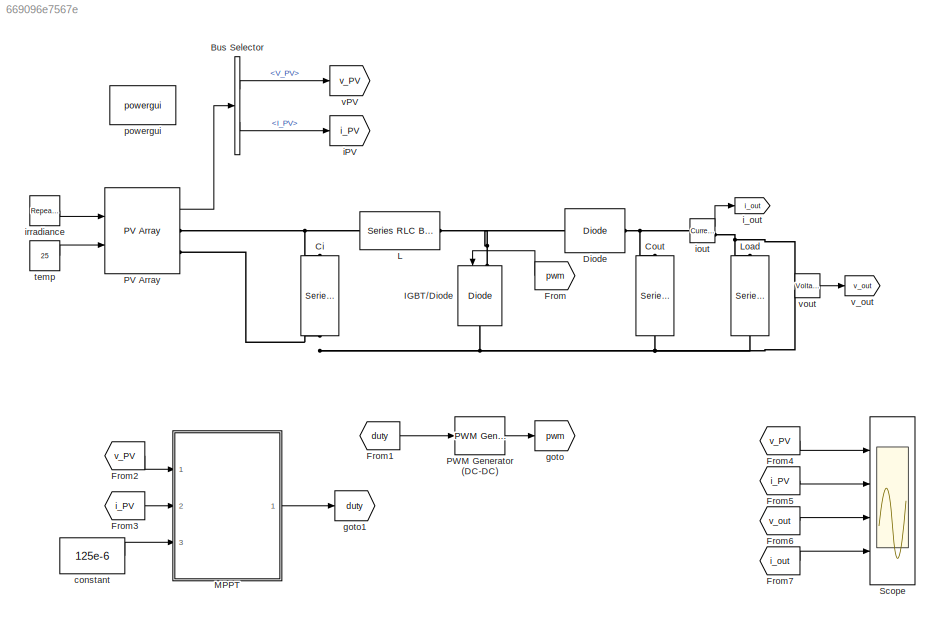
MODEL slx_669096e7567e
KIND model
CONFIG AbsTol = auto
CONFIG FixedStep = 5e-6
CONFIG MaxStep = auto
CONFIG MinStep = auto
CONFIG RelTol = 1e-3
CONFIG SampleTimeConstraint = Unconstrained
CONFIG Solver = ode3
CONFIG SolverMode = Auto
CONFIG SolverName = ode3
CONFIG StartTime = 0.0
CONFIG StopTime = 1.5
BLOCK [BusSelector] Bus Selector
  OutputSignals = V_PV,I_PV
  Ports = [1, 2]
BLOCK [Reference] Ci  REF=powerlib/Elements/Series RLC Branch
  Ports = [0, 0, 0, 0, 0, 1, 1]
  SourceBlock = powerlib/Elements/Series RLC Branch
  SourceType = Series RLC Branch
BLOCK [Reference] Cout  REF=powerlib/Elements/Series RLC Branch
  Ports = [0, 0, 0, 0, 0, 1, 1]
  SourceBlock = powerlib/Elements/Series RLC Branch
  SourceType = Series RLC Branch
BLOCK [Reference] Diode  REF=powerlib/Power
Electronics/Diode
  Ports = [0, 0, 0, 0, 0, 1, 1]
  SourceBlock = powerlib/Power\nElectronics/Diode
  SourceType = Diode
BLOCK [From] From
  GotoTag = pwm
BLOCK [From] From1
  GotoTag = duty
BLOCK [From] From2
  GotoTag = v_PV
BLOCK [From] From3
  GotoTag = i_PV
BLOCK [From] From4
  GotoTag = v_PV
BLOCK [From] From5
  GotoTag = i_PV
BLOCK [From] From6
  GotoTag = v_out
BLOCK [From] From7
  GotoTag = i_out
BLOCK [Reference] IGBT//Diode  REF=powerlib/Power
Electronics/IGBT//Diode
  Ports = [1, 0, 0, 0, 0, 1, 1]
  SourceBlock = powerlib/Power\nElectronics/IGBT//Diode
  SourceType = IGBT/Diode
BLOCK [Reference] L  REF=powerlib/Elements/Series RLC Branch
  Ports = [0, 0, 0, 0, 0, 1, 1]
  SourceBlock = powerlib/Elements/Series RLC Branch
  SourceType = Series RLC Branch
BLOCK [Reference] Load  REF=powerlib/Elements/Series RLC Branch
  Ports = [0, 0, 0, 0, 0, 1, 1]
  SourceBlock = powerlib/Elements/Series RLC Branch
  SourceType = Series RLC Branch
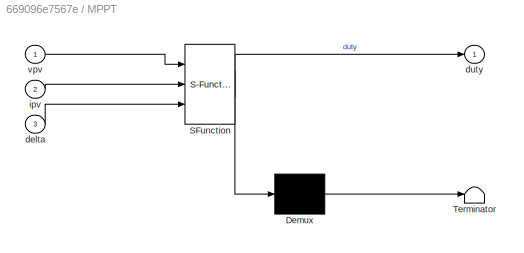
BLOCK [SubSystem] MPPT 
  ErrorFcn = Stateflow.Translate.translate
  PermitHierarchicalResolution = ExplicitOnly
  Ports = [3, 1]
  RequestExecContextInheritance = off
  SFBlockType = MATLAB Function
  TreatAsAtomicUnit = on
  Variant = off
BLOCK [Demux] MPPT / Demux 
  Outputs = 1
  Ports = [1, 1]
BLOCK [S-Function] MPPT / SFunction 
  EnableBusSupport = on
  FunctionName = sf_sfun
  PortCounts = [3 2]
  Ports = [3, 2]
  SFunctionDeploymentMode = off
  Tag = Stateflow S-Function MPPT 2
BLOCK [Terminator] MPPT / Terminator 
BLOCK [Inport] MPPT /delta
  IconDisplay = Port number
  Port = 3
BLOCK [Outport] MPPT /duty
  IconDisplay = Port number
BLOCK [Inport] MPPT /ipv
  IconDisplay = Port number
  Port = 2
BLOCK [Inport] MPPT /vpv
  IconDisplay = Port number
BLOCK [Reference] PV Array  REF=re_lib/Solar/PV Array
  Ports = [2, 1, 0, 0, 0, 0, 2]
  SourceBlock = re_lib/Solar/PV Array
  SourceType = PV array
BLOCK [Reference] PWM Generator (DC-DC)  REF=powerlib_meascontrol/Pulse & Signal
Generators/PWM Generator
(DC-DC)
  Ports = [1, 1]
  SourceBlock = powerlib_meascontrol/Pulse & Signal\nGenerators/PWM Generator\n(DC-DC)
  SourceType = PWM Generator (DC-DC)
BLOCK [Scope] Scope
  NumInputPorts = 4
  Ports = [4]
  ScopeSpecificationString = Simulink.scopes.TimeScopeBlockCfg('CurrentConfiguration', extmgr.ConfigurationSet(extmgr.Configuration('Core','General UI',true,'FigureColor',[1 1 1]),extmgr.Configuration('Core','Source UI',true),extmgr.Configuration('Sources','WiredSimulink',true),extmgr.Configuration('Visuals','Time Domain',true,'SerializedDisplays',{struct('MinYLimReal','-10','MaxYLimReal','10','YLabelReal','','MinYLimMag','0'...<+7148ch>
BLOCK [Constant] constant
  Value = 125e-6
BLOCK [Goto] goto
  GotoTag = pwm
BLOCK [Goto] goto1
  GotoTag = duty
BLOCK [Goto] iPV
  GotoTag = i_PV
BLOCK [Goto] i_out 
  GotoTag = i_out
BLOCK [Reference] iout  REF=powerlib/Measurements/Current Measurement
  Ports = [0, 1, 0, 0, 0, 1, 1]
  SourceBlock = powerlib/Measurements/Current Measurement
  SourceType = Current Measurement
  UserDataPersistent = on
BLOCK [Reference] irradiance  REF=simulink/Sources/Repeating
Sequence
Interpolated
  Ports = [0, 1]
  SourceBlock = simulink/Sources/Repeating\nSequence\nInterpolated
  SourceType = Repeating Sequence Interpolated
BLOCK [Reference] powergui  REF=powerlib/powergui
  Ports = []
  Priority = 1
  SourceBlock = powerlib/powergui
  SourceType = PSB option menu block
  UserDataPersistent = on
BLOCK [Constant] temp
  Value = 25
BLOCK [Goto] vPV
  GotoTag = v_PV
BLOCK [Goto] v_out 
  GotoTag = v_out
BLOCK [Reference] vout   REF=powerlib/Measurements/Voltage Measurement
  Ports = [0, 1, 0, 0, 0, 2]
  SourceBlock = powerlib/Measurements/Voltage Measurement
  SourceType = Voltage Measurement
  UserDataPersistent = on
LINE Bus Selector:1 -> vPV:1
LINE Bus Selector:2 -> iPV:1
LINE From1:1 -> PWM Generator (DC-DC):1
LINE From2:1 -> MPPT :1
LINE From3:1 -> MPPT :2
LINE From4:1 -> Scope:1
LINE From5:1 -> Scope:2
LINE From6:1 -> Scope:3
LINE From7:1 -> Scope:4
LINE From:1 -> IGBT//Diode:1
LINE MPPT :1 -> goto1:1
LINE PV Array:1 -> Bus Selector:1
LINE PWM Generator (DC-DC):1 -> goto:1
LINE constant:1 -> MPPT :3
LINE iout:1 -> i_out :1
LINE irradiance:1 -> PV Array:1
LINE temp:1 -> PV Array:2
LINE vout :1 -> v_out :1
PNET net1: Ci:LConn1 -- L:LConn1 -- PV Array:RConn1
PNET net2: Ci:RConn1 -- Cout:RConn1 -- IGBT//Diode:RConn1 -- Load:RConn1 -- PV Array:RConn2 -- vout :LConn2
PNET net3: Cout:LConn1 -- Diode:RConn1 -- iout:LConn1
PNET net4: Diode:LConn1 -- IGBT//Diode:LConn1 -- L:RConn1
PNET net5: Load:LConn1 -- iout:RConn1 -- vout :LConn1
note: PNET lines group multi-terminal physical nets as a canonical sorted terminal list (undirected conserving connections); 2-terminal nets keep the pairwise PLINE form
CHART MPPT
 states=1 transitions=1
  STATE_LABEL 'eML_blk_kernel()'
  STATE_LABEL 'SCRIPT:\nfunction duty = MPPT_algorithm(vpv,ipv,delta)\nduty_init =0.1;\nduty_min =0;\nduty_max =.85;\n\npersistent Vold Pold duty_old;\n\nif isempty(Vold)\n    Vold=0;\n    Pold=0;\n    duty_old=duty_init;\nend\nP=vpv*ipv;\ndV=vpv-Vold;\ndP=P-Pold;\n\nif dP ~= 0 && vpv>30\n    if dP<0\n        if dV<0\n            duty= duty_old - delta;\n        else\n            duty= duty_old + delta;\n        end\n    else\n        i...<+297ch>'
